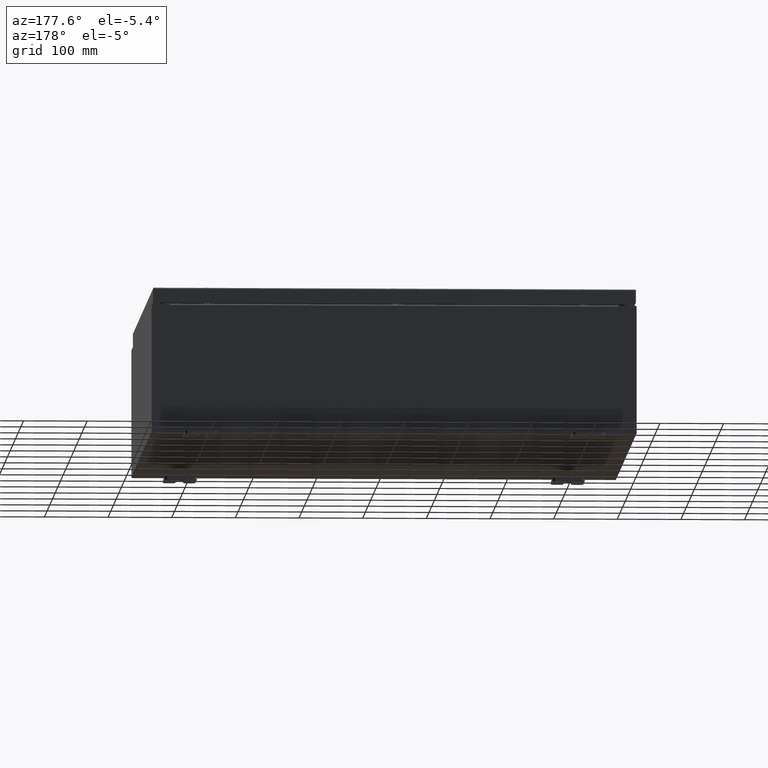
[diagram: clean part render]
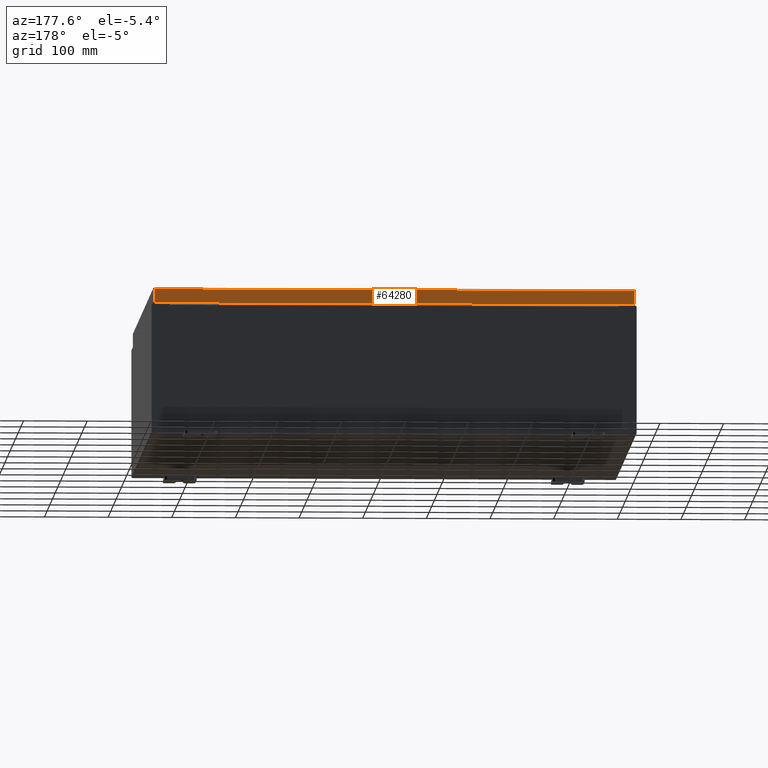
[diagram: same view with one face highlighted and labeled with its STEP entity id]
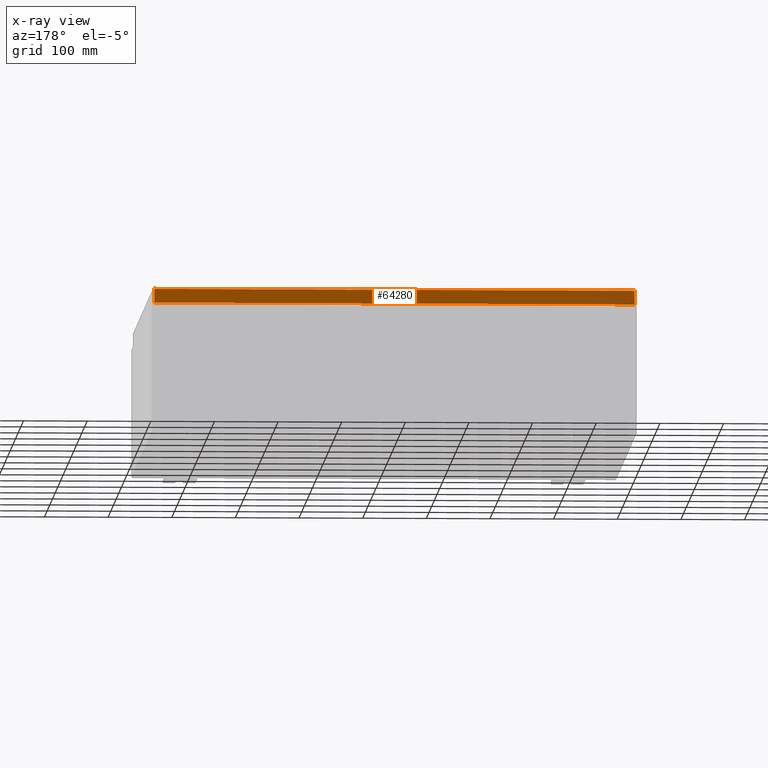
[diagram: x-ray of the same camera — body ghosted, the highlighted face saturated]
A machine part, auxiliary view. The second image highlights one B-rep face of the part: STEP entity #64280.
The next image is the same camera in x-ray: the body ghosted, the highlighted face saturated — about 0% of this face is hidden behind the body in this view.
In plain terms, the highlighted planar face has unit normal (0, -1, -0).
Its self-contained STEP definition (entity closure, byte-faithful):
#5710 = VECTOR ( 'NONE', #20338, 39.37007874015748100 ) ;
#6983 = DIRECTION ( 'NONE',  ( -0.0000000000000000000, 2.532419924601855400E-015, -1.000000000000000000 ) ) ;
#7320 = LINE ( 'NONE', #15235, #5710 ) ;
#11679 = ORIENTED_EDGE ( 'NONE', *, *, #15697, .F. ) ;
#12760 = CARTESIAN_POINT ( 'NONE',  ( 14.84865786437626400, 14.93750000000000200, -0.9376999999999997600 ) ) ;
#14648 = LINE ( 'NONE', #24444, #53465 ) ;
#14758 = CARTESIAN_POINT ( 'NONE',  ( -14.84865786437626400, 14.93750000000000000, -0.08770000000000118000 ) ) ;
#15235 = CARTESIAN_POINT ( 'NONE',  ( -14.93749999999999800, 14.93750000000000200, -0.9377000000000035300 ) ) ;
#15450 = EDGE_CURVE ( 'NONE', #63110, #59613, #54542, .T. ) ;
#15697 = EDGE_CURVE ( 'NONE', #23009, #35510, #60015, .T. ) ;
#17484 = CARTESIAN_POINT ( 'NONE',  ( -14.84865786437626800, 14.93750000000000200, -0.9377000000000035300 ) ) ;
#20338 = DIRECTION ( 'NONE',  ( 1.000000000000000000, -4.379057701015054300E-047, 1.234475243998914400E-016 ) ) ;
#21374 = EDGE_CURVE ( 'NONE', #63110, #23009, #14648, .T. ) ;
#21705 = ORIENTED_EDGE ( 'NONE', *, *, #15450, .T. ) ;
#23009 = VERTEX_POINT ( 'NONE', #14758 ) ;
#24444 = CARTESIAN_POINT ( 'NONE',  ( -14.93749999999999800, 14.93750000000000000, -0.08770000000000008300 ) ) ;
#26290 = CARTESIAN_POINT ( 'NONE',  ( 14.84865786437626400, 14.93750000000000000, -0.08770000000000226200 ) ) ;
#29043 = AXIS2_PLACEMENT_3D ( 'NONE', #45780, #61091, #30820 ) ;
#30600 = PLANE ( 'NONE',  #29043 ) ;
#30820 = DIRECTION ( 'NONE',  ( 0.0000000000000000000, 2.532419924601855400E-015, -1.000000000000000000 ) ) ;
#33326 = EDGE_CURVE ( 'NONE', #35510, #59613, #7320, .T. ) ;
#34640 = FACE_OUTER_BOUND ( 'NONE', #45007, .T. ) ;
#35510 = VERTEX_POINT ( 'NONE', #17484 ) ;
#35845 = CARTESIAN_POINT ( 'NONE',  ( 14.84865786437626800, 14.93750000000000000, 3.808883627975179900E-014 ) ) ;
#37355 = CARTESIAN_POINT ( 'NONE',  ( -14.84865786437626800, 14.93750000000000000, -0.07469999999999980800 ) ) ;
#45007 = EDGE_LOOP ( 'NONE', ( #60391, #21705, #59849, #11679 ) ) ;
#45780 = CARTESIAN_POINT ( 'NONE',  ( -4.669775745843815100E-030, 14.93750000000000000, 3.808883627975179900E-014 ) ) ;
#46509 = VECTOR ( 'NONE', #6983, 39.37007874015748100 ) ;
#51303 = DIRECTION ( 'NONE',  ( 0.0000000000000000000, 2.532419924601855400E-015, -1.000000000000000000 ) ) ;
#51305 = VECTOR ( 'NONE', #51303, 39.37007874015748100 ) ;
#53465 = VECTOR ( 'NONE', #54984, 39.37007874015748100 ) ;
#54542 = LINE ( 'NONE', #35845, #51305 ) ;
#54984 = DIRECTION ( 'NONE',  ( -1.000000000000000000, -4.978778418007973200E-031, 7.315408853326900200E-017 ) ) ;
#59613 = VERTEX_POINT ( 'NONE', #12760 ) ;
#59849 = ORIENTED_EDGE ( 'NONE', *, *, #33326, .F. ) ;
#60015 = LINE ( 'NONE', #37355, #46509 ) ;
#60391 = ORIENTED_EDGE ( 'NONE', *, *, #21374, .F. ) ;
#61091 = DIRECTION ( 'NONE',  ( 3.126209704330587400E-031, -1.000000000000000000, -2.532419924601855400E-015 ) ) ;
#63110 = VERTEX_POINT ( 'NONE', #26290 ) ;
#64280 = ADVANCED_FACE ( 'NONE', ( #34640 ), #30600, .F. ) ;